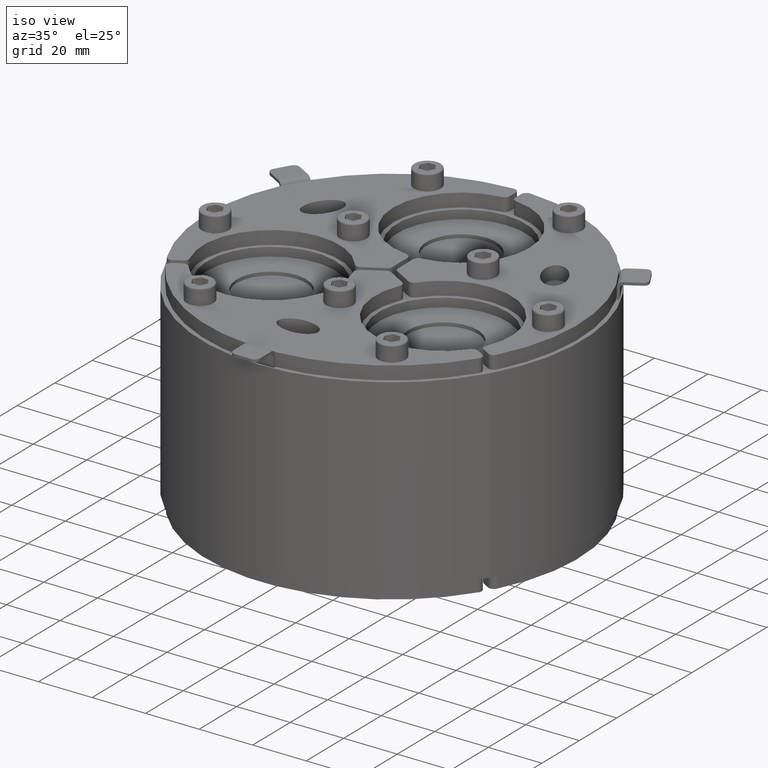
[diagram: clean part render]
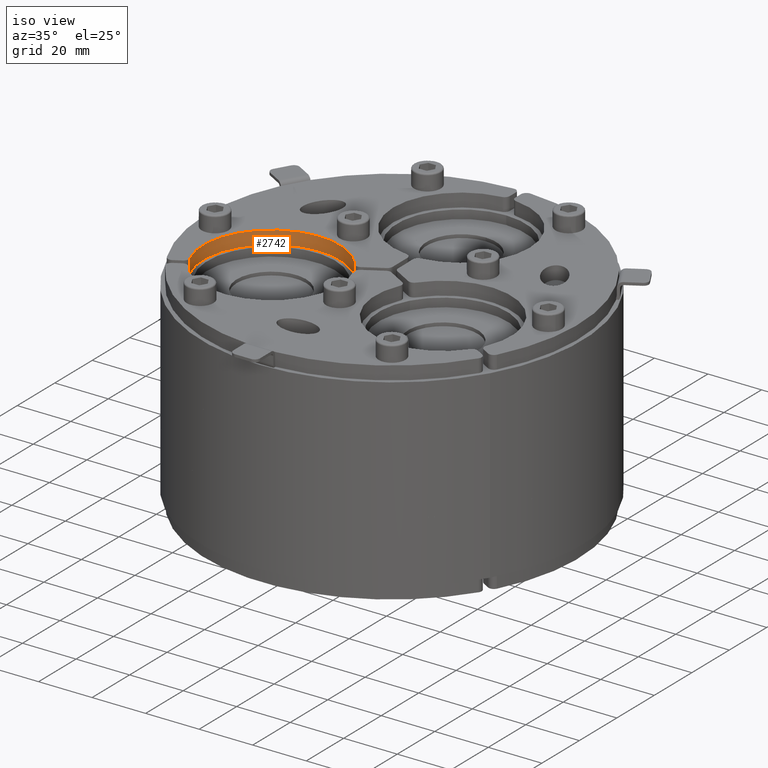
[diagram: same view with one face highlighted and labeled with its STEP entity id]
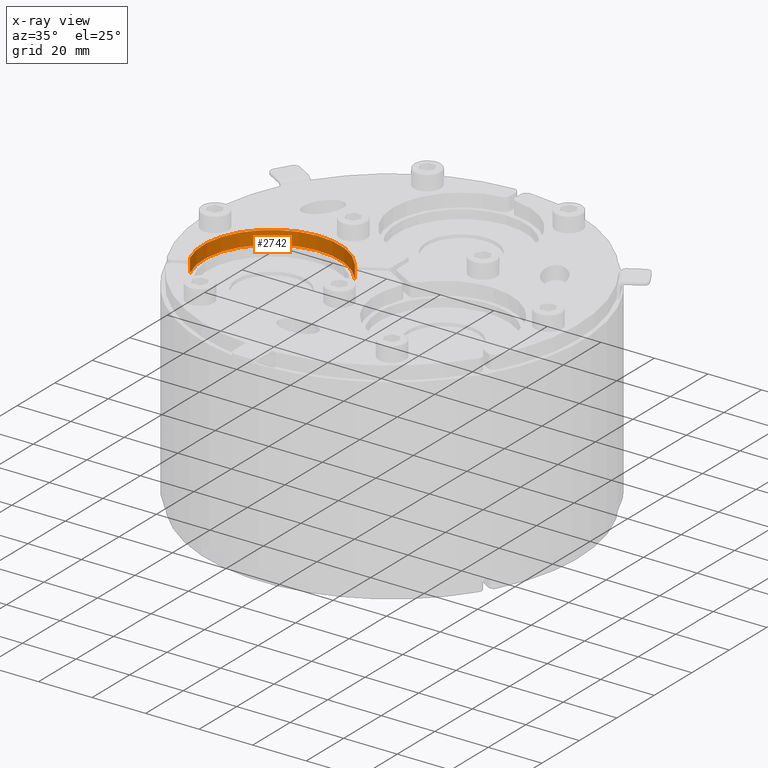
[diagram: x-ray of the same camera — body ghosted, the highlighted face saturated]
A machine part, iso view. The second image highlights one B-rep face of the part: STEP entity #2742.
The next image is the same camera in x-ray: the body ghosted, the highlighted face saturated — about 0% of this face is hidden behind the body in this view.
In plain terms, the highlighted cylindrical surface (partial cylindrical patch) has radius 25.5 mm, axis along (0, -0, -1).
Its self-contained STEP definition (entity closure, byte-faithful):
#422=FACE_OUTER_BOUND('',#597,.T.);
#597=EDGE_LOOP('',(#2241,#2242,#2243,#2244));
#805=LINE('',#4707,#1027);
#806=LINE('',#4710,#1028);
#1027=VECTOR('',#3818,10.);
#1028=VECTOR('',#3821,10.);
#1195=CIRCLE('',#3186,25.5);
#1209=CIRCLE('',#3209,25.5);
#1377=VERTEX_POINT('',#4655);
#1378=VERTEX_POINT('',#4657);
#1395=VERTEX_POINT('',#4705);
#1396=VERTEX_POINT('',#4709);
#1675=EDGE_CURVE('',#1377,#1378,#1195,.F.);
#1700=EDGE_CURVE('',#1378,#1395,#805,.T.);
#1701=EDGE_CURVE('',#1396,#1377,#806,.T.);
#1702=EDGE_CURVE('',#1395,#1396,#1209,.T.);
#2241=ORIENTED_EDGE('',*,*,#1700,.F.);
#2242=ORIENTED_EDGE('',*,*,#1675,.F.);
#2243=ORIENTED_EDGE('',*,*,#1701,.F.);
#2244=ORIENTED_EDGE('',*,*,#1702,.F.);
#2630=CYLINDRICAL_SURFACE('',#3208,25.5);
#2742=ADVANCED_FACE('',(#422),#2630,.F.);
#3186=AXIS2_PLACEMENT_3D('',#4658,#3764,#3765);
#3208=AXIS2_PLACEMENT_3D('',#4708,#3819,#3820);
#3209=AXIS2_PLACEMENT_3D('',#4711,#3822,#3823);
#3764=DIRECTION('center_axis',(0.,0.,1.));
#3765=DIRECTION('ref_axis',(-1.,0.,0.));
#3818=DIRECTION('',(0.,0.,-1.));
#3819=DIRECTION('center_axis',(0.,0.,-1.));
#3820=DIRECTION('ref_axis',(-1.,0.,0.));
#3821=DIRECTION('',(0.,0.,1.));
#3822=DIRECTION('center_axis',(0.,0.,1.));
#3823=DIRECTION('ref_axis',(-1.,0.,0.));
#4655=CARTESIAN_POINT('',(-55.3856966912666,-28.7647799417391,0.));
#4657=CARTESIAN_POINT('',(-11.4820013706,-3.41696962993294,0.));
#4658=CARTESIAN_POINT('Origin',(-32.0429399400242,-18.5,0.));
#4705=CARTESIAN_POINT('',(-11.4820013706,-3.41696962993294,-5.));
#4707=CARTESIAN_POINT('',(-11.4820013706,-3.41696962993294,0.));
#4708=CARTESIAN_POINT('Origin',(-32.0429399400242,-18.5,0.));
#4709=CARTESIAN_POINT('',(-55.3856966912666,-28.7647799417391,-5.));
#4710=CARTESIAN_POINT('',(-55.3856966912666,-28.7647799417391,0.));
#4711=CARTESIAN_POINT('Origin',(-32.0429399400242,-18.5,-5.));